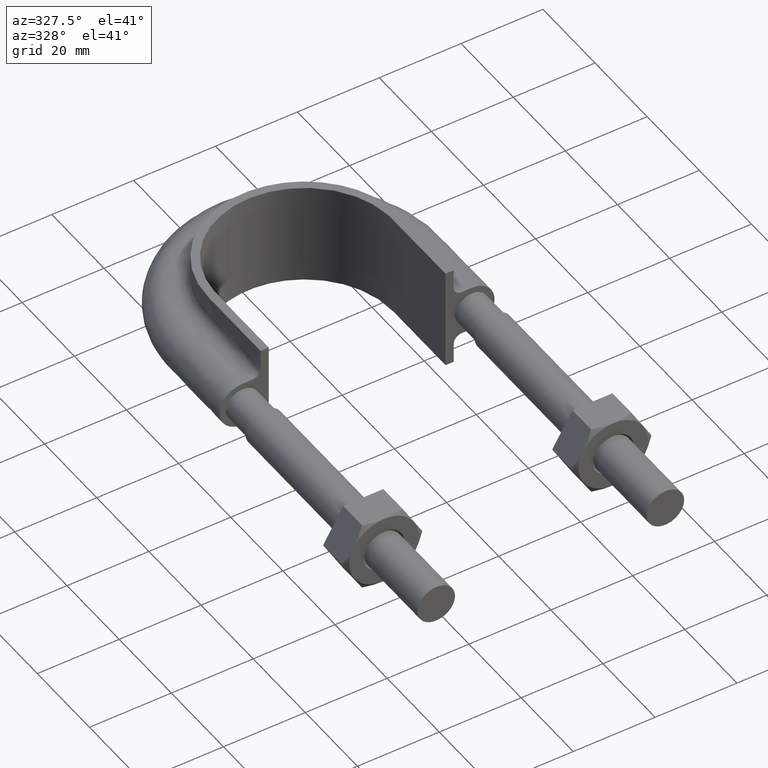
[diagram: clean part render]
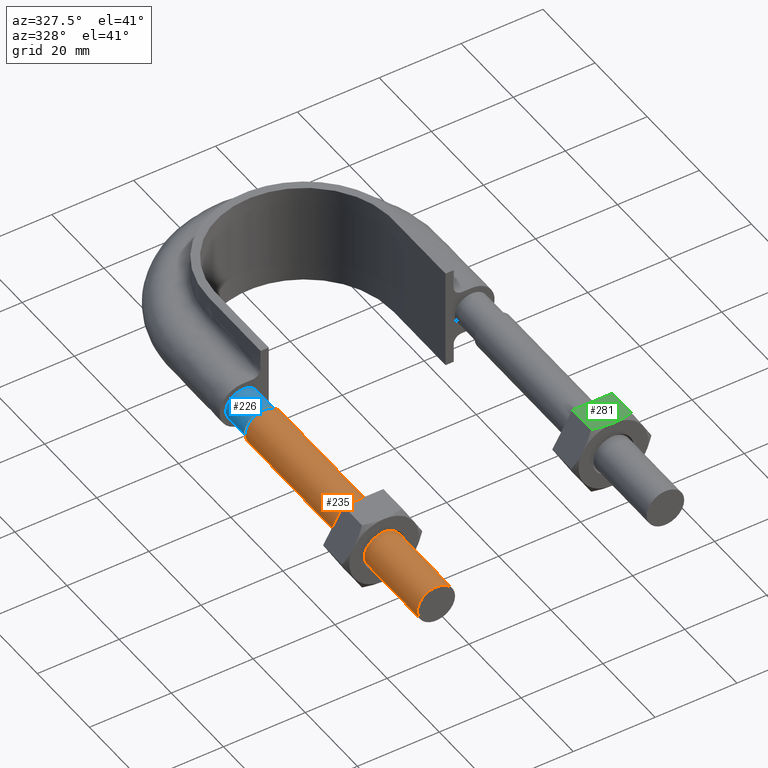
[diagram: same view with three faces highlighted in distinct colors, each labeled with its STEP entity id]
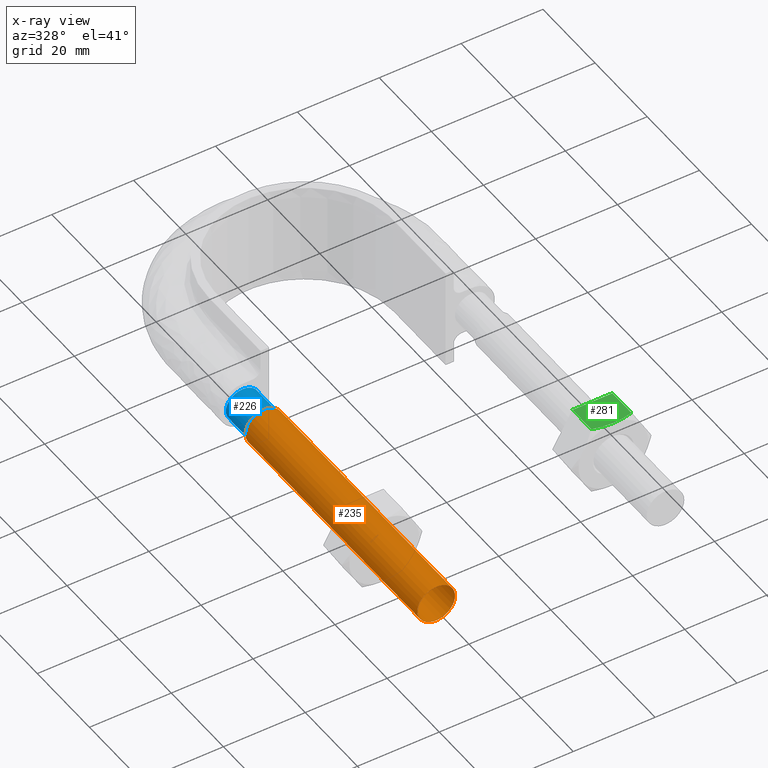
[diagram: x-ray of the same camera — body ghosted, the three highlighted faces saturated]
A machine part, auxiliary view with three faces highlighted in distinct colors.
The next image is the same camera in x-ray (body ghosted, the three faces saturated) — at least one of them is partly hidden behind the body in this view.
Their STEP definitions:

[orange] entity #235 — the highlighted cylindrical surface (bore or boss wall) has radius 4.6 mm, axis along (0, 1, 0).
#235 = ADVANCED_FACE( '', ( #336, #337 ), #338, .T. );
#336 = FACE_OUTER_BOUND( '', #1333, .T. );
#337 = FACE_OUTER_BOUND( '', #1334, .T. );
#338 = CYLINDRICAL_SURFACE( '', #1335, 4.60000000000000 );
#1333 = EDGE_LOOP( '', ( #1588 ) );
#1334 = EDGE_LOOP( '', ( #1589 ) );
#1335 = AXIS2_PLACEMENT_3D( '', #1590, #1591, #1592 );
#1588 = ORIENTED_EDGE( '', *, *, #2049, .T. );
#1589 = ORIENTED_EDGE( '', *, *, #2050, .F. );
#1590 = CARTESIAN_POINT( '', ( -28.0000000000000, 66.0000000000000, 4.02283187230651E-015 ) );
#1591 = DIRECTION( '', ( 2.44921270764475E-016, 1.00000000000000, 6.12303176911189E-017 ) );
#1592 = DIRECTION( '', ( 1.00000000000000, -2.44921270764475E-016, -7.49830360911069E-033 ) );
#2049 = EDGE_CURVE( '', #2229, #2229, #2230, .T. );
#2050 = EDGE_CURVE( '', #2231, #2231, #2232, .T. );
#2229 = VERTEX_POINT( '', #2722 );
#2230 = CIRCLE( '', #2723, 4.60000000000000 );
#2231 = VERTEX_POINT( '', #2724 );
#2232 = CIRCLE( '', #2725, 4.60000000000000 );
#2722 = CARTESIAN_POINT( '', ( -23.4000000000000, 66.0000000000000, 4.02283187230651E-015 ) );
#2723 = AXIS2_PLACEMENT_3D( '', #3130, #3131, #3132 );
#2724 = CARTESIAN_POINT( '', ( -23.4000000000000, 5.73115773588873E-015, -1.83690953073355E-017 ) );
#2725 = AXIS2_PLACEMENT_3D( '', #3133, #3134, #3135 );
#3130 = CARTESIAN_POINT( '', ( -28.0000000000000, 66.0000000000000, 4.02283187230651E-015 ) );
#3131 = DIRECTION( '', ( -2.44921270764475E-016, -1.00000000000000, -6.12303176911189E-017 ) );
#3132 = DIRECTION( '', ( 1.00000000000000, -2.44921270764475E-016, -6.84411544865306E-033 ) );
#3133 = CARTESIAN_POINT( '', ( -28.0000000000000, 6.85779558140531E-015, -1.83690953073355E-017 ) );
#3134 = DIRECTION( '', ( -2.44921270764475E-016, -1.00000000000000, -6.12303176911189E-017 ) );
#3135 = DIRECTION( '', ( 1.00000000000000, -2.44921270764475E-016, -6.84411544865306E-033 ) );

[blue] entity #226 — the highlighted cylindrical surface (bore or boss wall) has radius 4.1 mm, axis along (0, 1, 0).
#226 = ADVANCED_FACE( '', ( #313, #314 ), #315, .T. );
#313 = FACE_OUTER_BOUND( '', #1161, .T. );
#314 = FACE_OUTER_BOUND( '', #1162, .T. );
#315 = CYLINDRICAL_SURFACE( '', #1163, 4.10000000000000 );
#1161 = EDGE_LOOP( '', ( #1523, #1524, #1525, #1526, #1527, #1528, #1529 ) );
#1162 = EDGE_LOOP( '', ( #1530 ) );
#1163 = AXIS2_PLACEMENT_3D( '', #1531, #1532, #1533 );
#1523 = ORIENTED_EDGE( '', *, *, #2017, .T. );
#1524 = ORIENTED_EDGE( '', *, *, #2018, .T. );
#1525 = ORIENTED_EDGE( '', *, *, #2019, .T. );
#1526 = ORIENTED_EDGE( '', *, *, #2020, .T. );
#1527 = ORIENTED_EDGE( '', *, *, #2021, .T. );
#1528 = ORIENTED_EDGE( '', *, *, #2022, .T. );
#1529 = ORIENTED_EDGE( '', *, *, #2023, .T. );
#1530 = ORIENTED_EDGE( '', *, *, #2024, .T. );
#1531 = CARTESIAN_POINT( '', ( -28.0000000000000, 74.3000000000000, 2.02060048380692E-015 ) );
#1532 = DIRECTION( '', ( 2.44921270764475E-016, 1.00000000000000, 6.12303176911189E-017 ) );
#1533 = DIRECTION( '', ( 1.00000000000000, -2.44921270764475E-016, -7.49830360911069E-033 ) );
#2017 = EDGE_CURVE( '', #2179, #2180, #2181, .T. );
#2018 = EDGE_CURVE( '', #2180, #2182, #2183, .T. );
#2019 = EDGE_CURVE( '', #2182, #2184, #2185, .T. );
#2020 = EDGE_CURVE( '', #2184, #2186, #2187, .T. );
#2021 = EDGE_CURVE( '', #2186, #2188, #2189, .T. );
#2022 = EDGE_CURVE( '', #2188, #2190, #2191, .T. );
#2023 = EDGE_CURVE( '', #2190, #2179, #2192, .T. );
#2024 = EDGE_CURVE( '', #2193, #2193, #2194, .F. );
#2179 = VERTEX_POINT( '', #2630 );
#2180 = VERTEX_POINT( '', #2631 );
#2181 = CIRCLE( '', #2632, 4.10000000000000 );
#2182 = VERTEX_POINT( '', #2633 );
#2183 = CIRCLE( '', #2634, 4.10000000000000 );
#2184 = VERTEX_POINT( '', #2635 );
#2185 = CIRCLE( '', #2636, 4.10000000000000 );
#2186 = VERTEX_POINT( '', #2637 );
#2187 = CIRCLE( '', #2638, 4.10000000000000 );
#2188 = VERTEX_POINT( '', #2639 );
#2189 = CIRCLE( '', #2640, 4.10000000000000 );
#2190 = VERTEX_POINT( '', #2641 );
#2191 = CIRCLE( '', #2642, 4.10000000000000 );
#2192 = CIRCLE( '', #2643, 4.10000000000000 );
#2193 = VERTEX_POINT( '', #2644 );
#2194 = CIRCLE( '', #2645, 4.10000000000000 );
#2630 = CARTESIAN_POINT( '', ( -23.9000000000000, 74.3000000000000, 5.34345494379736E-014 ) );
#2631 = CARTESIAN_POINT( '', ( -25.4436918124004, 74.3000000000000, 3.20550907813583 ) );
#2632 = AXIS2_PLACEMENT_3D( '', #3076, #3077, #3078 );
#2633 = CARTESIAN_POINT( '', ( -28.9123358292367, 74.3000000000000, 3.99720443994186 ) );
#2634 = AXIS2_PLACEMENT_3D( '', #3079, #3080, #3081 );
#2635 = CARTESIAN_POINT( '', ( -31.6939723584001, 74.3000000000000, 1.77892333038169 ) );
#2636 = AXIS2_PLACEMENT_3D( '', #3082, #3083, #3084 );
#2637 = CARTESIAN_POINT( '', ( -31.6939723583899, 74.3000000000000, -1.77892333040284 ) );
#2638 = AXIS2_PLACEMENT_3D( '', #3085, #3086, #3087 );
#2639 = CARTESIAN_POINT( '', ( -28.9123358292208, 74.3000000000000, -3.99720443994548 ) );
#2640 = AXIS2_PLACEMENT_3D( '', #3088, #3089, #3090 );
#2641 = CARTESIAN_POINT( '', ( -25.4436918123791, 74.3000000000000, -3.20550907811886 ) );
#2642 = AXIS2_PLACEMENT_3D( '', #3091, #3092, #3093 );
#2643 = AXIS2_PLACEMENT_3D( '', #3094, #3095, #3096 );
#2644 = CARTESIAN_POINT( '', ( -23.9000000000000, 66.0000000000000, 1.51238884697064E-015 ) );
#2645 = AXIS2_PLACEMENT_3D( '', #3097, #3098, #3099 );
#3076 = CARTESIAN_POINT( '', ( -28.0000000000000, 74.3000000000000, 2.02060048380692E-015 ) );
#3077 = DIRECTION( '', ( -2.44921270764475E-016, -1.00000000000000, -6.12303176911189E-017 ) );
#3078 = DIRECTION( '', ( 1.00000000000000, -2.44921270764475E-016, -7.49830360911069E-033 ) );
#3079 = CARTESIAN_POINT( '', ( -28.0000000000000, 74.3000000000000, 2.02060048380692E-015 ) );
#3080 = DIRECTION( '', ( -2.44921270764475E-016, -1.00000000000000, -6.12303176911189E-017 ) );
#3081 = DIRECTION( '', ( 1.00000000000000, -2.44921270764475E-016, -7.49830360911069E-033 ) );
#3082 = CARTESIAN_POINT( '', ( -28.0000000000000, 74.3000000000000, 2.02060048380692E-015 ) );
#3083 = DIRECTION( '', ( -2.44921270764475E-016, -1.00000000000000, -6.12303176911189E-017 ) );
#3084 = DIRECTION( '', ( 1.00000000000000, -2.44921270764475E-016, -7.49830360911069E-033 ) );
#3085 = CARTESIAN_POINT( '', ( -28.0000000000000, 74.3000000000000, 2.02060048380692E-015 ) );
#3086 = DIRECTION( '', ( -2.44921270764475E-016, -1.00000000000000, -6.12303176911189E-017 ) );
#3087 = DIRECTION( '', ( 1.00000000000000, -2.44921270764475E-016, -7.49830360911069E-033 ) );
#3088 = CARTESIAN_POINT( '', ( -28.0000000000000, 74.3000000000000, 2.02060048380692E-015 ) );
#3089 = DIRECTION( '', ( -2.44921270764475E-016, -1.00000000000000, -6.12303176911189E-017 ) );
#3090 = DIRECTION( '', ( 1.00000000000000, -2.44921270764475E-016, -7.49830360911069E-033 ) );
#3091 = CARTESIAN_POINT( '', ( -28.0000000000000, 74.3000000000000, 2.02060048380692E-015 ) );
#3092 = DIRECTION( '', ( -2.44921270764475E-016, -1.00000000000000, -6.12303176911189E-017 ) );
#3093 = DIRECTION( '', ( 1.00000000000000, -2.44921270764475E-016, -7.49830360911069E-033 ) );
#3094 = CARTESIAN_POINT( '', ( -28.0000000000000, 74.3000000000000, 2.02060048380692E-015 ) );
#3095 = DIRECTION( '', ( -2.44921270764475E-016, -1.00000000000000, -6.12303176911189E-017 ) );
#3096 = DIRECTION( '', ( 1.00000000000000, -2.44921270764475E-016, -7.49830360911069E-033 ) );
#3097 = CARTESIAN_POINT( '', ( -28.0000000000000, 66.0000000000000, 1.51238884697064E-015 ) );
#3098 = DIRECTION( '', ( -2.44921270764475E-016, -1.00000000000000, -6.12303176911189E-017 ) );
#3099 = DIRECTION( '', ( 1.00000000000000, -2.44921270764475E-016, 0.000000000000000 ) );

[green] entity #281 — the highlighted planar face has unit normal (-0, 0, -1).
#281 = ADVANCED_FACE( '', ( #437 ), #438, .F. );
#437 = FACE_OUTER_BOUND( '', #1434, .T. );
#438 = PLANE( '', #1435 );
#1434 = EDGE_LOOP( '', ( #1908, #1909, #1910, #1911, #1912 ) );
#1435 = AXIS2_PLACEMENT_3D( '', #1913, #1914, #1915 );
#1908 = ORIENTED_EDGE( '', *, *, #2141, .F. );
#1909 = ORIENTED_EDGE( '', *, *, #2136, .F. );
#1910 = ORIENTED_EDGE( '', *, *, #2142, .F. );
#1911 = ORIENTED_EDGE( '', *, *, #2128, .F. );
#1912 = ORIENTED_EDGE( '', *, *, #2143, .F. );
#1913 = CARTESIAN_POINT( '', ( 23.0925227118884, 27.9999999999984, 8.49999999999958 ) );
#1914 = DIRECTION( '', ( -5.70502706995067E-027, 6.12303176911189E-017, -1.00000000000000 ) );
#1915 = DIRECTION( '', ( -1.00000000000000, 2.44921270764475E-016, 5.70504206655788E-027 ) );
#2128 = EDGE_CURVE( '', #2364, #2366, #2367, .T. );
#2136 = EDGE_CURVE( '', #2378, #2327, #2380, .T. );
#2141 = EDGE_CURVE( '', #2327, #2385, #2386, .T. );
#2142 = EDGE_CURVE( '', #2366, #2378, #2387, .F. );
#2143 = EDGE_CURVE( '', #2385, #2364, #2388, .T. );
#2327 = VERTEX_POINT( '', #2918 );
#2364 = VERTEX_POINT( '', #2973 );
#2366 = VERTEX_POINT( '', #2975 );
#2367 = LINE( '', #2976, #2977 );
#2378 = VERTEX_POINT( '', #2998 );
#2380 = B_SPLINE_CURVE_WITH_KNOTS( '', 3, ( #3000, #3001, #3002, #3003, #3004, #3005 ), .UNSPECIFIED., .F., .F., ( 4, 2, 4 ), ( 4.83064900412312E-007, 0.00246777364959037, 0.00493506423428033 ), .UNSPECIFIED. );
#2385 = VERTEX_POINT( '', #3022 );
#2386 = B_SPLINE_CURVE_WITH_KNOTS( '', 3, ( #3023, #3024, #3025, #3026, #3027, #3028, #3029, #3030 ), .UNSPECIFIED., .F., .F., ( 4, 2, 2, 4 ), ( 0.00493506423428033, 0.00616384870526238, 0.00739263317624444, 0.00985020211820856 ), .UNSPECIFIED. );
#2387 = LINE( '', #3031, #3032 );
#2388 = LINE( '', #3033, #3034 );
#2918 = CARTESIAN_POINT( '', ( 28.0000000000000, 20.0000000000000, 8.49999999999873 ) );
#2973 = CARTESIAN_POINT( '', ( 23.1225006406974, 27.9999999999984, 8.49999999999957 ) );
#2975 = CARTESIAN_POINT( '', ( 32.8774993593026, 27.9999999999984, 8.49999999999788 ) );
#2976 = CARTESIAN_POINT( '', ( 32.8999999999998, 27.9999999999984, 8.49999999999788 ) );
#2977 = VECTOR( '', #3271, 1000.00000000008 );
#2998 = CARTESIAN_POINT( '', ( 32.8774993593026, 20.7505553499464, 8.49999999999788 ) );
#3000 = CARTESIAN_POINT( '', ( 32.8774993593026, 20.7505553499469, 8.49999999999958 ) );
#3001 = CARTESIAN_POINT( '', ( 32.0793946307409, 20.5212203171282, 8.49999999999958 ) );
#3002 = CARTESIAN_POINT( '', ( 31.2755256942571, 20.3324525365444, 8.49999999999958 ) );
#3003 = CARTESIAN_POINT( '', ( 29.6512346174558, 20.0714148540590, 8.49999999999958 ) );
#3004 = CARTESIAN_POINT( '', ( 28.8306909832417, 20.0000000000004, 8.49999999999958 ) );
#3005 = CARTESIAN_POINT( '', ( 28.0000000000000, 20.0000000000004, 8.49999999999958 ) );
#3022 = CARTESIAN_POINT( '', ( 23.1225006406974, 20.7505553499464, 8.49999999999957 ) );
#3023 = CARTESIAN_POINT( '', ( 28.0000000000000, 20.0000000000004, 8.49999999999958 ) );
#3024 = CARTESIAN_POINT( '', ( 27.5862910567866, 20.0000000000004, 8.49999999999958 ) );
#3025 = CARTESIAN_POINT( '', ( 27.1705130745727, 20.0177112081767, 8.49999999999958 ) );
#3026 = CARTESIAN_POINT( '', ( 26.3480000229778, 20.0863021936216, 8.49999999999958 ) );
#3027 = CARTESIAN_POINT( '', ( 25.9394776662171, 20.1371116504198, 8.49999999999958 ) );
#3028 = CARTESIAN_POINT( '', ( 24.7211308743332, 20.3331494013917, 8.49999999999958 ) );
#3029 = CARTESIAN_POINT( '', ( 23.9184999349111, 20.5218253127359, 8.49999999999958 ) );
#3030 = CARTESIAN_POINT( '', ( 23.1225006406975, 20.7505553499469, 8.49999999999958 ) );
#3031 = CARTESIAN_POINT( '', ( 32.8774993593026, 27.9999999999984, 8.49999999999788 ) );
#3032 = VECTOR( '', #3286, 999.999999999933 );
#3033 = CARTESIAN_POINT( '', ( 23.1225006406974, 27.9999999999984, 8.49999999999957 ) );
#3034 = VECTOR( '', #3287, 999.999999999933 );
#3271 = DIRECTION( '', ( 1.00000000000000, -2.44921270764465E-016, -1.73083769539048E-013 ) );
#3286 = DIRECTION( '', ( 2.44921270764475E-016, 1.00000000000000, 6.12303176911189E-017 ) );
#3287 = DIRECTION( '', ( 2.44921270764475E-016, 1.00000000000000, 6.12303176911189E-017 ) );